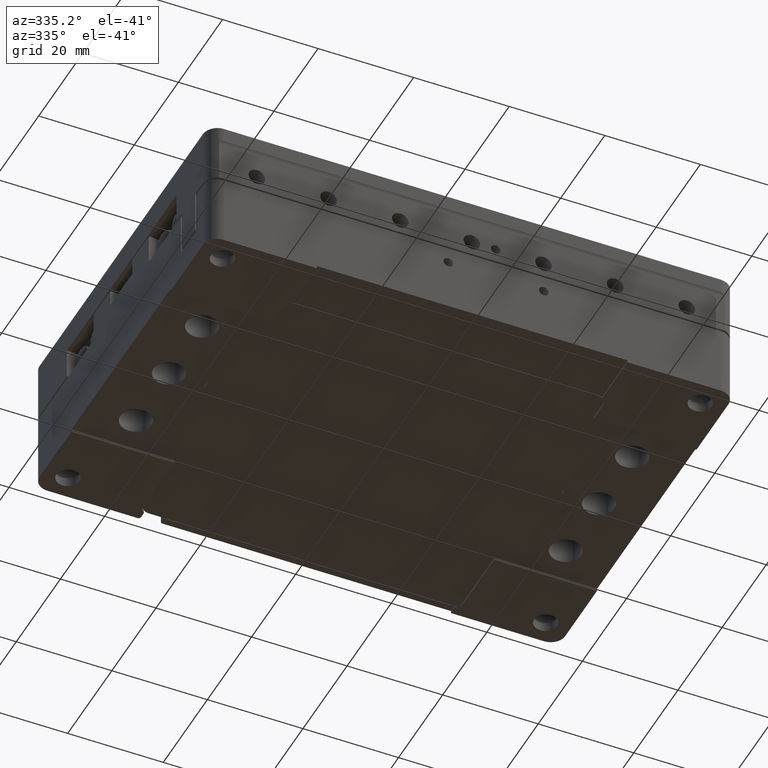
[diagram: clean part render]
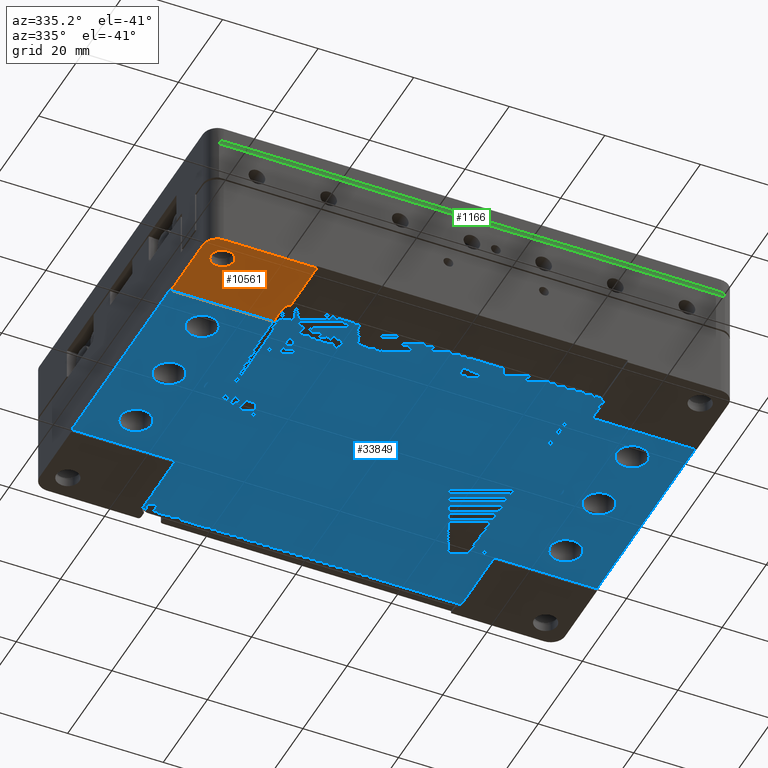
[diagram: same view with three faces highlighted in distinct colors, each labeled with its STEP entity id]
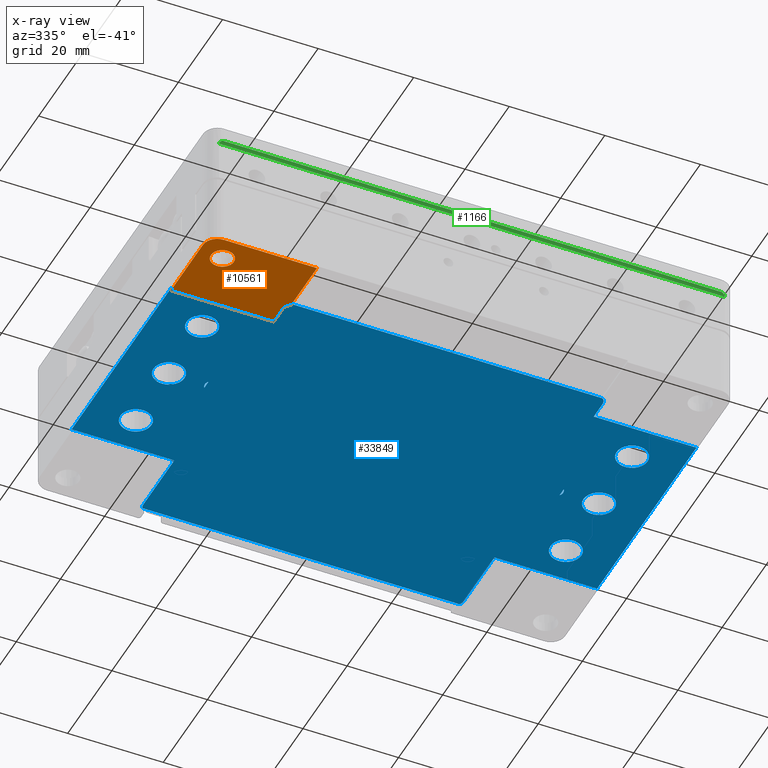
[diagram: x-ray of the same camera — body ghosted, the three highlighted faces saturated]
A machine part, auxiliary view with three faces highlighted in distinct colors.
The next image is the same camera in x-ray (body ghosted, the three faces saturated) — at least one of them is partly hidden behind the body in this view.
Their STEP definitions:

[orange] entity #10561 — the highlighted planar face has unit normal (0, 0, -1).
#1062 = VERTEX_POINT ( 'NONE', #17157 ) ;
#1491 = CARTESIAN_POINT ( 'NONE',  ( -50.00000000000000000, -35.00000000000000000, -15.00000000000000000 ) ) ;
#2390 = ORIENTED_EDGE ( 'NONE', *, *, #11864, .T. ) ;
#3045 = ORIENTED_EDGE ( 'NONE', *, *, #25262, .T. ) ;
#3469 = DIRECTION ( 'NONE',  ( 1.000000000000000000, 0.000000000000000000, 0.000000000000000000 ) ) ;
#4200 = CARTESIAN_POINT ( 'NONE',  ( -55.00000000000000000, -40.00000000000000000, -15.00000000000000000 ) ) ;
#4336 = CARTESIAN_POINT ( 'NONE',  ( -33.50000000000000000, -22.50000000000000000, -15.00000000000000000 ) ) ;
#4690 = EDGE_CURVE ( 'NONE', #29111, #1062, #32689, .T. ) ;
#5015 = VECTOR ( 'NONE', #30026, 1000.000000000000000 ) ;
#5588 = ORIENTED_EDGE ( 'NONE', *, *, #4690, .T. ) ;
#5800 = LINE ( 'NONE', #9050, #22763 ) ;
#6364 = EDGE_CURVE ( 'NONE', #23460, #29111, #19356, .T. ) ;
#6886 = FACE_BOUND ( 'NONE', #27708, .T. ) ;
#7289 = DIRECTION ( 'NONE',  ( 0.000000000000000000, -1.000000000000000000, 0.000000000000000000 ) ) ;
#7312 = ORIENTED_EDGE ( 'NONE', *, *, #30873, .T. ) ;
#7421 = DIRECTION ( 'NONE',  ( 0.000000000000000000, 0.000000000000000000, -1.000000000000000000 ) ) ;
#8280 = CARTESIAN_POINT ( 'NONE',  ( -33.50000000000000000, -26.50000000000000000, -15.00000000000000000 ) ) ;
#8851 = CARTESIAN_POINT ( 'NONE',  ( -47.60000000000000142, -35.00000000000000000, -15.00000000000000000 ) ) ;
#9050 = CARTESIAN_POINT ( 'NONE',  ( -32.50000000000000000, -40.00000000000000000, -15.00000000000000000 ) ) ;
#9436 = CARTESIAN_POINT ( 'NONE',  ( -52.40000000000000568, -35.00000000000000000, -15.00000000000000000 ) ) ;
#9831 = CIRCLE ( 'NONE', #14948, 2.399999999999999467 ) ;
#10561 = ADVANCED_FACE ( 'NONE', ( #26226, #6886 ), #34437, .T. ) ;
#10910 = VERTEX_POINT ( 'NONE', #4336 ) ;
#11432 = EDGE_CURVE ( 'NONE', #10910, #17461, #26263, .T. ) ;
#11500 = ORIENTED_EDGE ( 'NONE', *, *, #11432, .T. ) ;
#11864 = EDGE_CURVE ( 'NONE', #15895, #23460, #15455, .T. ) ;
#12263 = VECTOR ( 'NONE', #28736, 1000.000000000000000 ) ;
#14395 = DIRECTION ( 'NONE',  ( 0.000000000000000000, 0.000000000000000000, 1.000000000000000000 ) ) ;
#14439 = EDGE_CURVE ( 'NONE', #21505, #25199, #28973, .T. ) ;
#14583 = DIRECTION ( 'NONE',  ( -1.000000000000000000, 0.000000000000000000, 0.000000000000000000 ) ) ;
#14909 = EDGE_CURVE ( 'NONE', #20449, #15895, #5800, .T. ) ;
#14948 = AXIS2_PLACEMENT_3D ( 'NONE', #1491, #23336, #3469 ) ;
#15453 = DIRECTION ( 'NONE',  ( 0.000000000000000000, -1.000000000000000000, 0.000000000000000000 ) ) ;
#15455 = LINE ( 'NONE', #17795, #12263 ) ;
#15895 = VERTEX_POINT ( 'NONE', #27947 ) ;
#16311 = CARTESIAN_POINT ( 'NONE',  ( -32.50000000000000000, -28.23205080756899932, -15.00000000000000000 ) ) ;
#17157 = CARTESIAN_POINT ( 'NONE',  ( -55.00000000000000000, -22.50000000000000000, -15.00000000000000000 ) ) ;
#17453 = CARTESIAN_POINT ( 'NONE',  ( -31.50000000000000000, -26.50000000000000000, -15.00000000000000000 ) ) ;
#17461 = VERTEX_POINT ( 'NONE', #8280 ) ;
#17515 = ORIENTED_EDGE ( 'NONE', *, *, #19066, .T. ) ;
#17795 = CARTESIAN_POINT ( 'NONE',  ( -55.00000000000000000, -40.00000000000000000, -15.00000000000000000 ) ) ;
#18442 = CARTESIAN_POINT ( 'NONE',  ( -50.00000000000000000, -35.00000000000000000, -15.00000000000000000 ) ) ;
#18747 = CARTESIAN_POINT ( 'NONE',  ( -55.00000000000000000, 0.000000000000000000, -15.00000000000000000 ) ) ;
#19047 = DIRECTION ( 'NONE',  ( 0.000000000000000000, 0.000000000000000000, -1.000000000000000000 ) ) ;
#19066 = EDGE_CURVE ( 'NONE', #17461, #20449, #19687, .T. ) ;
#19356 = CIRCLE ( 'NONE', #26247, 3.000000000000002665 ) ;
#19687 = CIRCLE ( 'NONE', #25982, 2.000000000000001776 ) ;
#19766 = CARTESIAN_POINT ( 'NONE',  ( -32.50000000000000000, -22.50000000000000000, -15.00000000000000000 ) ) ;
#19786 = CARTESIAN_POINT ( 'NONE',  ( -55.00000000000000000, -37.00000000000000000, -15.00000000000000000 ) ) ;
#19962 = DIRECTION ( 'NONE',  ( 0.000000000000000000, -1.000000000000000000, 0.000000000000000000 ) ) ;
#20449 = VERTEX_POINT ( 'NONE', #16311 ) ;
#20819 = VECTOR ( 'NONE', #30172, 1000.000000000000000 ) ;
#21505 = VERTEX_POINT ( 'NONE', #9436 ) ;
#21569 = CARTESIAN_POINT ( 'NONE',  ( -52.00000000000000000, -37.00000000000000000, -15.00000000000000000 ) ) ;
#21735 = LINE ( 'NONE', #19766, #20819 ) ;
#22476 = AXIS2_PLACEMENT_3D ( 'NONE', #4200, #7421, #15453 ) ;
#22763 = VECTOR ( 'NONE', #19962, 1000.000000000000000 ) ;
#23336 = DIRECTION ( 'NONE',  ( 0.000000000000000000, 0.000000000000000000, 1.000000000000000000 ) ) ;
#23460 = VERTEX_POINT ( 'NONE', #24931 ) ;
#24931 = CARTESIAN_POINT ( 'NONE',  ( -52.00000000000000000, -40.00000000000000000, -15.00000000000000000 ) ) ;
#25199 = VERTEX_POINT ( 'NONE', #8851 ) ;
#25262 = EDGE_CURVE ( 'NONE', #1062, #10910, #21735, .T. ) ;
#25982 = AXIS2_PLACEMENT_3D ( 'NONE', #17453, #14395, #14583 ) ;
#26152 = EDGE_LOOP ( 'NONE', ( #3045, #11500, #17515, #31686, #2390, #29790, #5588 ) ) ;
#26226 = FACE_OUTER_BOUND ( 'NONE', #26152, .T. ) ;
#26247 = AXIS2_PLACEMENT_3D ( 'NONE', #21569, #19047, #29987 ) ;
#26263 = LINE ( 'NONE', #32150, #27111 ) ;
#27111 = VECTOR ( 'NONE', #7289, 1000.000000000000000 ) ;
#27576 = ORIENTED_EDGE ( 'NONE', *, *, #14439, .T. ) ;
#27708 = EDGE_LOOP ( 'NONE', ( #7312, #27576 ) ) ;
#27947 = CARTESIAN_POINT ( 'NONE',  ( -32.50000000000000000, -40.00000000000000000, -15.00000000000000000 ) ) ;
#28736 = DIRECTION ( 'NONE',  ( -1.000000000000000000, 0.000000000000000000, 0.000000000000000000 ) ) ;
#28973 = CIRCLE ( 'NONE', #33527, 2.399999999999999467 ) ;
#29111 = VERTEX_POINT ( 'NONE', #19786 ) ;
#29389 = DIRECTION ( 'NONE',  ( 0.000000000000000000, 0.000000000000000000, 1.000000000000000000 ) ) ;
#29790 = ORIENTED_EDGE ( 'NONE', *, *, #6364, .T. ) ;
#29987 = DIRECTION ( 'NONE',  ( 1.000000000000000000, 0.000000000000000000, 0.000000000000000000 ) ) ;
#30026 = DIRECTION ( 'NONE',  ( 0.000000000000000000, 1.000000000000000000, 0.000000000000000000 ) ) ;
#30172 = DIRECTION ( 'NONE',  ( 1.000000000000000000, 0.000000000000000000, 0.000000000000000000 ) ) ;
#30873 = EDGE_CURVE ( 'NONE', #25199, #21505, #9831, .T. ) ;
#31686 = ORIENTED_EDGE ( 'NONE', *, *, #14909, .T. ) ;
#32150 = CARTESIAN_POINT ( 'NONE',  ( -33.50000000000000000, -26.50000000000000000, -15.00000000000000000 ) ) ;
#32689 = LINE ( 'NONE', #18747, #5015 ) ;
#33527 = AXIS2_PLACEMENT_3D ( 'NONE', #18442, #29389, #35096 ) ;
#34437 = PLANE ( 'NONE',  #22476 ) ;
#35096 = DIRECTION ( 'NONE',  ( 1.000000000000000000, 0.000000000000000000, 0.000000000000000000 ) ) ;

[blue] entity #33849 — the highlighted planar face has unit normal (0, 0, -1).
#21 = CARTESIAN_POINT ( 'NONE',  ( -48.25000000000000000, 0.000000000000000000, -14.50000000000000000 ) ) ;
#79 = EDGE_CURVE ( 'NONE', #13425, #29669, #34217, .T. ) ;
#298 = VERTEX_POINT ( 'NONE', #17809 ) ;
#411 = ORIENTED_EDGE ( 'NONE', *, *, #17182, .T. ) ;
#634 = CARTESIAN_POINT ( 'NONE',  ( -55.00000000000000000, 22.50000000000000000, -14.50000000000000000 ) ) ;
#898 = VERTEX_POINT ( 'NONE', #32576 ) ;
#983 = VECTOR ( 'NONE', #24867, 1000.000000000000000 ) ;
#1032 = ORIENTED_EDGE ( 'NONE', *, *, #12529, .T. ) ;
#1178 = EDGE_LOOP ( 'NONE', ( #1032, #31660 ) ) ;
#1293 = DIRECTION ( 'NONE',  ( 0.000000000000000000, 0.000000000000000000, -1.000000000000000000 ) ) ;
#1498 = AXIS2_PLACEMENT_3D ( 'NONE', #18668, #5060, #34791 ) ;
#1722 = CARTESIAN_POINT ( 'NONE',  ( 0.000000000000000000, 22.50000000000000000, -14.50000000000000000 ) ) ;
#1725 = CARTESIAN_POINT ( 'NONE',  ( -33.50000000000000000, 36.50000000000000000, -14.50000000000000000 ) ) ;
#1746 = EDGE_CURVE ( 'NONE', #7914, #15602, #18711, .T. ) ;
#2008 = CARTESIAN_POINT ( 'NONE',  ( -45.00000000000000000, -15.00000000000000000, -14.50000000000000000 ) ) ;
#2014 = CIRCLE ( 'NONE', #6587, 3.250000000000002665 ) ;
#2094 = EDGE_CURVE ( 'NONE', #29669, #16212, #6169, .T. ) ;
#2159 = DIRECTION ( 'NONE',  ( 0.000000000000000000, 0.000000000000000000, 1.000000000000000000 ) ) ;
#2228 = EDGE_CURVE ( 'NONE', #28335, #22862, #7303, .T. ) ;
#2233 = ORIENTED_EDGE ( 'NONE', *, *, #4182, .T. ) ;
#2349 = ORIENTED_EDGE ( 'NONE', *, *, #29619, .T. ) ;
#2356 = VERTEX_POINT ( 'NONE', #21 ) ;
#2509 = CARTESIAN_POINT ( 'NONE',  ( -33.50000000000000000, 22.50000000000000000, -14.50000000000000000 ) ) ;
#2545 = CARTESIAN_POINT ( 'NONE',  ( -37.16499999999999915, 0.000000000000000000, -14.50000000000000000 ) ) ;
#2602 = CARTESIAN_POINT ( 'NONE',  ( 0.000000000000000000, -28.00000000000000000, -14.50000000000000000 ) ) ;
#2633 = VECTOR ( 'NONE', #15832, 1000.000000000000000 ) ;
#2706 = EDGE_CURVE ( 'NONE', #20560, #25093, #19325, .T. ) ;
#2785 = VERTEX_POINT ( 'NONE', #2509 ) ;
#2848 = ORIENTED_EDGE ( 'NONE', *, *, #2228, .T. ) ;
#3104 = ORIENTED_EDGE ( 'NONE', *, *, #17647, .T. ) ;
#3185 = VERTEX_POINT ( 'NONE', #22100 ) ;
#3234 = VECTOR ( 'NONE', #32581, 1000.000000000000000 ) ;
#3269 = CARTESIAN_POINT ( 'NONE',  ( -33.50000000000000000, -26.50000000000000000, -14.50000000000000000 ) ) ;
#3480 = DIRECTION ( 'NONE',  ( 1.000000000000000000, 0.000000000000000000, 0.000000000000000000 ) ) ;
#3494 = LINE ( 'NONE', #14384, #33011 ) ;
#3819 = CARTESIAN_POINT ( 'NONE',  ( 31.50000000000000000, -26.50000000000000000, -14.50000000000000000 ) ) ;
#3894 = CARTESIAN_POINT ( 'NONE',  ( -55.00000000000000000, 0.000000000000000000, -14.50000000000000000 ) ) ;
#4182 = EDGE_CURVE ( 'NONE', #28480, #25108, #21249, .T. ) ;
#4230 = DIRECTION ( 'NONE',  ( 0.000000000000000000, 0.000000000000000000, 1.000000000000000000 ) ) ;
#4454 = CIRCLE ( 'NONE', #6749, 3.250000000000002665 ) ;
#4521 = ORIENTED_EDGE ( 'NONE', *, *, #15443, .T. ) ;
#4636 = CARTESIAN_POINT ( 'NONE',  ( -37.16499999999999915, 0.9448677156089099194, -14.50000000000000000 ) ) ;
#4662 = DIRECTION ( 'NONE',  ( -1.000000000000000000, 0.000000000000000000, 0.000000000000000000 ) ) ;
#4868 = VERTEX_POINT ( 'NONE', #634 ) ;
#4905 = AXIS2_PLACEMENT_3D ( 'NONE', #25720, #4230, #12613 ) ;
#4921 = LINE ( 'NONE', #7965, #2633 ) ;
#4983 = EDGE_CURVE ( 'NONE', #34850, #2356, #35348, .T. ) ;
#5060 = DIRECTION ( 'NONE',  ( 0.000000000000000000, 0.000000000000000000, 1.000000000000000000 ) ) ;
#5384 = FACE_BOUND ( 'NONE', #11626, .T. ) ;
#5485 = AXIS2_PLACEMENT_3D ( 'NONE', #33898, #12224, #23166 ) ;
#5860 = VERTEX_POINT ( 'NONE', #6949 ) ;
#6074 = ORIENTED_EDGE ( 'NONE', *, *, #26664, .T. ) ;
#6161 = VECTOR ( 'NONE', #17173, 1000.000000000000000 ) ;
#6169 = LINE ( 'NONE', #17076, #7273 ) ;
#6185 = LINE ( 'NONE', #17091, #17327 ) ;
#6324 = CARTESIAN_POINT ( 'NONE',  ( 33.50000000000000000, -22.50000000000000000, -14.50000000000000000 ) ) ;
#6351 = DIRECTION ( 'NONE',  ( 1.000000000000000000, 0.000000000000000000, 0.000000000000000000 ) ) ;
#6439 = VERTEX_POINT ( 'NONE', #18871 ) ;
#6519 = CARTESIAN_POINT ( 'NONE',  ( 45.00000000000000000, 15.00000000000000000, -14.50000000000000000 ) ) ;
#6523 = CARTESIAN_POINT ( 'NONE',  ( -48.25000000000000000, 15.00000000000000000, -14.50000000000000000 ) ) ;
#6587 = AXIS2_PLACEMENT_3D ( 'NONE', #10237, #12704, #4662 ) ;
#6749 = AXIS2_PLACEMENT_3D ( 'NONE', #10928, #31944, #7410 ) ;
#6849 = EDGE_CURVE ( 'NONE', #16154, #20069, #4454, .T. ) ;
#6901 = ORIENTED_EDGE ( 'NONE', *, *, #1746, .T. ) ;
#6949 = CARTESIAN_POINT ( 'NONE',  ( -48.25000000000000000, -15.00000000000000000, -14.50000000000000000 ) ) ;
#7055 = CARTESIAN_POINT ( 'NONE',  ( 33.50000000000000000, 22.50000000000000000, -14.50000000000000000 ) ) ;
#7150 = CARTESIAN_POINT ( 'NONE',  ( 32.82287565553114916, -28.00000000000000000, -14.50000000000000000 ) ) ;
#7165 = ORIENTED_EDGE ( 'NONE', *, *, #27681, .T. ) ;
#7273 = VECTOR ( 'NONE', #3480, 1000.000000000000000 ) ;
#7303 = CIRCLE ( 'NONE', #1498, 3.250000000000002665 ) ;
#7393 = FACE_BOUND ( 'NONE', #22392, .T. ) ;
#7410 = DIRECTION ( 'NONE',  ( -1.000000000000000000, 0.000000000000000000, 0.000000000000000000 ) ) ;
#7477 = DIRECTION ( 'NONE',  ( 0.000000000000000000, 0.000000000000000000, -1.000000000000000000 ) ) ;
#7514 = ORIENTED_EDGE ( 'NONE', *, *, #19033, .T. ) ;
#7516 = CARTESIAN_POINT ( 'NONE',  ( -36.00000000000000000, 0.000000000000000000, -14.50000000000000000 ) ) ;
#7553 = DIRECTION ( 'NONE',  ( 0.000000000000000000, -1.000000000000000000, 0.000000000000000000 ) ) ;
#7593 = CIRCLE ( 'NONE', #23030, 3.250000000000002665 ) ;
#7732 = CARTESIAN_POINT ( 'NONE',  ( 0.000000000000000000, 0.000000000000000000, -14.50000000000000000 ) ) ;
#7775 = VERTEX_POINT ( 'NONE', #14024 ) ;
#7804 = DIRECTION ( 'NONE',  ( -1.000000000000000000, 0.000000000000000000, 0.000000000000000000 ) ) ;
#7868 = DIRECTION ( 'NONE',  ( 0.000000000000000000, 0.000000000000000000, 1.000000000000000000 ) ) ;
#7914 = VERTEX_POINT ( 'NONE', #7055 ) ;
#7965 = CARTESIAN_POINT ( 'NONE',  ( 33.50000000000000000, 0.000000000000000000, -14.50000000000000000 ) ) ;
#8256 = VERTEX_POINT ( 'NONE', #11261 ) ;
#8261 = CIRCLE ( 'NONE', #27726, 3.250000000000002665 ) ;
#8518 = VERTEX_POINT ( 'NONE', #31486 ) ;
#8577 = EDGE_LOOP ( 'NONE', ( #6074, #9883 ) ) ;
#8626 = ORIENTED_EDGE ( 'NONE', *, *, #2094, .T. ) ;
#8884 = CIRCLE ( 'NONE', #27181, 3.250000000000002665 ) ;
#8959 = LINE ( 'NONE', #30815, #6161 ) ;
#8973 = CARTESIAN_POINT ( 'NONE',  ( 37.16499999999999915, 0.000000000000000000, -14.50000000000000000 ) ) ;
#9249 = LINE ( 'NONE', #3894, #25872 ) ;
#9495 = ORIENTED_EDGE ( 'NONE', *, *, #25463, .T. ) ;
#9790 = CARTESIAN_POINT ( 'NONE',  ( 48.25000000000000000, 3.980102097228895273E-16, -14.50000000000000000 ) ) ;
#9883 = ORIENTED_EDGE ( 'NONE', *, *, #6849, .T. ) ;
#10055 = EDGE_CURVE ( 'NONE', #6439, #4868, #9249, .T. ) ;
#10112 = VECTOR ( 'NONE', #31983, 1000.000000000000000 ) ;
#10237 = CARTESIAN_POINT ( 'NONE',  ( 45.00000000000000000, 0.000000000000000000, -14.50000000000000000 ) ) ;
#10251 = EDGE_LOOP ( 'NONE', ( #2233, #19810, #30357 ) ) ;
#10473 = CARTESIAN_POINT ( 'NONE',  ( 45.00000000000000000, -15.00000000000000000, -14.50000000000000000 ) ) ;
#10507 = DIRECTION ( 'NONE',  ( -1.000000000000000000, 0.000000000000000000, 0.000000000000000000 ) ) ;
#10510 = VERTEX_POINT ( 'NONE', #20122 ) ;
#10528 = EDGE_CURVE ( 'NONE', #25093, #6439, #6185, .T. ) ;
#10575 = CARTESIAN_POINT ( 'NONE',  ( -37.16499999999999915, -0.9448677156089099194, -14.50000000000000000 ) ) ;
#10588 = EDGE_LOOP ( 'NONE', ( #411, #15382, #25548, #8626, #2349, #11645, #6901, #32014, #20131, #21968, #3104, #33236, #7165, #32182, #18816, #23655 ) ) ;
#10761 = DIRECTION ( 'NONE',  ( 0.000000000000000000, 0.000000000000000000, -1.000000000000000000 ) ) ;
#10865 = AXIS2_PLACEMENT_3D ( 'NONE', #23448, #15371, #17880 ) ;
#10877 = DIRECTION ( 'NONE',  ( -1.000000000000000000, 0.000000000000000000, 0.000000000000000000 ) ) ;
#10928 = CARTESIAN_POINT ( 'NONE',  ( -45.00000000000000000, 15.00000000000000000, -14.50000000000000000 ) ) ;
#11126 = CARTESIAN_POINT ( 'NONE',  ( 36.00000000000000000, 0.000000000000000000, -14.50000000000000000 ) ) ;
#11193 = VECTOR ( 'NONE', #25655, 1000.000000000000000 ) ;
#11260 = DIRECTION ( 'NONE',  ( 0.000000000000000000, 0.000000000000000000, 1.000000000000000000 ) ) ;
#11261 = CARTESIAN_POINT ( 'NONE',  ( -41.75000000000000000, -15.00000000000000000, -14.50000000000000000 ) ) ;
#11626 = EDGE_LOOP ( 'NONE', ( #4521, #31637 ) ) ;
#11645 = ORIENTED_EDGE ( 'NONE', *, *, #33276, .T. ) ;
#11810 = CIRCLE ( 'NONE', #5485, 3.250000000000002665 ) ;
#11912 = DIRECTION ( 'NONE',  ( -1.000000000000000000, 0.000000000000000000, 0.000000000000000000 ) ) ;
#12197 = CARTESIAN_POINT ( 'NONE',  ( 0.000000000000000000, -22.50000000000000000, -14.50000000000000000 ) ) ;
#12224 = DIRECTION ( 'NONE',  ( 0.000000000000000000, 0.000000000000000000, 1.000000000000000000 ) ) ;
#12254 = CIRCLE ( 'NONE', #34551, 3.250000000000002665 ) ;
#12281 = EDGE_CURVE ( 'NONE', #30753, #7775, #4921, .T. ) ;
#12529 = EDGE_CURVE ( 'NONE', #2356, #34850, #11810, .T. ) ;
#12613 = DIRECTION ( 'NONE',  ( -1.000000000000000000, 0.000000000000000000, 0.000000000000000000 ) ) ;
#12704 = DIRECTION ( 'NONE',  ( 0.000000000000000000, 0.000000000000000000, 1.000000000000000000 ) ) ;
#12787 = DIRECTION ( 'NONE',  ( -1.000000000000000000, 0.000000000000000000, 0.000000000000000000 ) ) ;
#12862 = EDGE_CURVE ( 'NONE', #15588, #28480, #17159, .T. ) ;
#12906 = DIRECTION ( 'NONE',  ( 0.000000000000000000, 0.000000000000000000, 1.000000000000000000 ) ) ;
#13146 = CARTESIAN_POINT ( 'NONE',  ( -37.50000000000000000, 0.000000000000000000, -14.50000000000000000 ) ) ;
#13425 = VERTEX_POINT ( 'NONE', #1725 ) ;
#13428 = EDGE_CURVE ( 'NONE', #8256, #5860, #32350, .T. ) ;
#13605 = EDGE_CURVE ( 'NONE', #8518, #28264, #30061, .T. ) ;
#13624 = LINE ( 'NONE', #32618, #15659 ) ;
#14024 = CARTESIAN_POINT ( 'NONE',  ( 33.50000000000000000, -26.50000000000000000, -14.50000000000000000 ) ) ;
#14196 = ORIENTED_EDGE ( 'NONE', *, *, #13605, .T. ) ;
#14352 = VERTEX_POINT ( 'NONE', #15567 ) ;
#14384 = CARTESIAN_POINT ( 'NONE',  ( 0.000000000000000000, 22.50000000000000000, -14.50000000000000000 ) ) ;
#14479 = CARTESIAN_POINT ( 'NONE',  ( -32.82287565553114916, -28.00000000000000000, -14.50000000000000000 ) ) ;
#14714 = LINE ( 'NONE', #12197, #11193 ) ;
#14718 = DIRECTION ( 'NONE',  ( -1.000000000000000000, 0.000000000000000000, 0.000000000000000000 ) ) ;
#14772 = EDGE_CURVE ( 'NONE', #22372, #26268, #16006, .T. ) ;
#15371 = DIRECTION ( 'NONE',  ( 0.000000000000000000, 0.000000000000000000, -1.000000000000000000 ) ) ;
#15382 = ORIENTED_EDGE ( 'NONE', *, *, #15961, .T. ) ;
#15443 = EDGE_CURVE ( 'NONE', #298, #898, #31859, .T. ) ;
#15567 = CARTESIAN_POINT ( 'NONE',  ( 41.75000000000000000, 15.00000000000000000, -14.50000000000000000 ) ) ;
#15588 = VERTEX_POINT ( 'NONE', #10575 ) ;
#15589 = FACE_BOUND ( 'NONE', #1178, .T. ) ;
#15602 = VERTEX_POINT ( 'NONE', #15935 ) ;
#15659 = VECTOR ( 'NONE', #29772, 1000.000000000000000 ) ;
#15832 = DIRECTION ( 'NONE',  ( 0.000000000000000000, -1.000000000000000000, 0.000000000000000000 ) ) ;
#15909 = CARTESIAN_POINT ( 'NONE',  ( 45.00000000000000000, -15.00000000000000000, -14.50000000000000000 ) ) ;
#15935 = CARTESIAN_POINT ( 'NONE',  ( 55.00000000000000000, 22.50000000000000000, -14.50000000000000000 ) ) ;
#15946 = FACE_BOUND ( 'NONE', #25973, .T. ) ;
#15961 = EDGE_CURVE ( 'NONE', #2785, #13425, #8959, .T. ) ;
#16001 = CARTESIAN_POINT ( 'NONE',  ( -33.50000000000000000, -22.50000000000000000, -14.50000000000000000 ) ) ;
#16006 = LINE ( 'NONE', #2602, #34122 ) ;
#16154 = VERTEX_POINT ( 'NONE', #24226 ) ;
#16195 = ORIENTED_EDGE ( 'NONE', *, *, #23836, .T. ) ;
#16212 = VERTEX_POINT ( 'NONE', #32288 ) ;
#16292 = FACE_BOUND ( 'NONE', #30201, .T. ) ;
#17076 = CARTESIAN_POINT ( 'NONE',  ( 0.000000000000000000, 37.54999999999999716, -14.50000000000000000 ) ) ;
#17091 = CARTESIAN_POINT ( 'NONE',  ( 0.000000000000000000, -22.50000000000000000, -14.50000000000000000 ) ) ;
#17159 = LINE ( 'NONE', #2545, #983 ) ;
#17173 = DIRECTION ( 'NONE',  ( 0.000000000000000000, 1.000000000000000000, 0.000000000000000000 ) ) ;
#17182 = EDGE_CURVE ( 'NONE', #4868, #2785, #3494, .T. ) ;
#17188 = DIRECTION ( 'NONE',  ( 0.000000000000000000, -1.000000000000000000, 0.000000000000000000 ) ) ;
#17327 = VECTOR ( 'NONE', #22999, 1000.000000000000000 ) ;
#17434 = CARTESIAN_POINT ( 'NONE',  ( 48.25000000000000000, 15.00000000000000000, -14.50000000000000000 ) ) ;
#17474 = AXIS2_PLACEMENT_3D ( 'NONE', #10473, #21389, #21570 ) ;
#17647 = EDGE_CURVE ( 'NONE', #7775, #22372, #31641, .T. ) ;
#17791 = DIRECTION ( 'NONE',  ( 0.000000000000000000, 0.000000000000000000, 1.000000000000000000 ) ) ;
#17809 = CARTESIAN_POINT ( 'NONE',  ( 37.16499999999999915, -0.9448677156089099194, -14.50000000000000000 ) ) ;
#17880 = DIRECTION ( 'NONE',  ( -1.000000000000000000, 0.000000000000000000, 0.000000000000000000 ) ) ;
#18180 = CARTESIAN_POINT ( 'NONE',  ( -45.00000000000000000, 0.000000000000000000, -14.50000000000000000 ) ) ;
#18265 = ORIENTED_EDGE ( 'NONE', *, *, #19701, .T. ) ;
#18464 = FACE_OUTER_BOUND ( 'NONE', #10588, .T. ) ;
#18647 = FACE_BOUND ( 'NONE', #32155, .T. ) ;
#18668 = CARTESIAN_POINT ( 'NONE',  ( 45.00000000000000000, 0.000000000000000000, -14.50000000000000000 ) ) ;
#18711 = LINE ( 'NONE', #1722, #10112 ) ;
#18769 = AXIS2_PLACEMENT_3D ( 'NONE', #21083, #7477, #10507 ) ;
#18816 = ORIENTED_EDGE ( 'NONE', *, *, #10528, .T. ) ;
#18871 = CARTESIAN_POINT ( 'NONE',  ( -55.00000000000000000, -22.50000000000000000, -14.50000000000000000 ) ) ;
#18935 = DIRECTION ( 'NONE',  ( 0.000000000000000000, 0.000000000000000000, -1.000000000000000000 ) ) ;
#19033 = EDGE_CURVE ( 'NONE', #5860, #8256, #8261, .T. ) ;
#19044 = CIRCLE ( 'NONE', #19613, 1.500000000000001332 ) ;
#19325 = LINE ( 'NONE', #35093, #3234 ) ;
#19348 = LINE ( 'NONE', #8973, #24773 ) ;
#19613 = AXIS2_PLACEMENT_3D ( 'NONE', #22733, #11260, #22193 ) ;
#19701 = EDGE_CURVE ( 'NONE', #28264, #8518, #8884, .T. ) ;
#19771 = CIRCLE ( 'NONE', #27189, 3.250000000000002665 ) ;
#19810 = ORIENTED_EDGE ( 'NONE', *, *, #24516, .T. ) ;
#20069 = VERTEX_POINT ( 'NONE', #6523 ) ;
#20122 = CARTESIAN_POINT ( 'NONE',  ( 55.00000000000000000, -22.50000000000000000, -14.50000000000000000 ) ) ;
#20131 = ORIENTED_EDGE ( 'NONE', *, *, #27132, .T. ) ;
#20425 = EDGE_CURVE ( 'NONE', #15602, #10510, #13624, .T. ) ;
#20560 = VERTEX_POINT ( 'NONE', #3269 ) ;
#20623 = EDGE_CURVE ( 'NONE', #22862, #28335, #2014, .T. ) ;
#20845 = LINE ( 'NONE', #31787, #33306 ) ;
#20857 = DIRECTION ( 'NONE',  ( 0.000000000000000000, 0.000000000000000000, 1.000000000000000000 ) ) ;
#21083 = CARTESIAN_POINT ( 'NONE',  ( -31.50000000000000000, 36.50000000000000000, -14.50000000000000000 ) ) ;
#21249 = CIRCLE ( 'NONE', #26947, 1.500000000000001332 ) ;
#21320 = AXIS2_PLACEMENT_3D ( 'NONE', #3819, #1293, #14718 ) ;
#21389 = DIRECTION ( 'NONE',  ( 0.000000000000000000, 0.000000000000000000, 1.000000000000000000 ) ) ;
#21570 = DIRECTION ( 'NONE',  ( -1.000000000000000000, 0.000000000000000000, 0.000000000000000000 ) ) ;
#21640 = DIRECTION ( 'NONE',  ( -1.000000000000000000, 0.000000000000000000, 0.000000000000000000 ) ) ;
#21968 = ORIENTED_EDGE ( 'NONE', *, *, #12281, .T. ) ;
#22055 = DIRECTION ( 'NONE',  ( 0.000000000000000000, 0.000000000000000000, 1.000000000000000000 ) ) ;
#22100 = CARTESIAN_POINT ( 'NONE',  ( 33.50000000000000000, 36.50000000000000000, -14.50000000000000000 ) ) ;
#22193 = DIRECTION ( 'NONE',  ( -1.000000000000000000, 0.000000000000000000, 0.000000000000000000 ) ) ;
#22372 = VERTEX_POINT ( 'NONE', #7150 ) ;
#22392 = EDGE_LOOP ( 'NONE', ( #9495, #16195 ) ) ;
#22650 = CARTESIAN_POINT ( 'NONE',  ( -45.00000000000000000, 15.00000000000000000, -14.50000000000000000 ) ) ;
#22691 = DIRECTION ( 'NONE',  ( 0.000000000000000000, 1.000000000000000000, 0.000000000000000000 ) ) ;
#22733 = CARTESIAN_POINT ( 'NONE',  ( -36.00000000000000000, 0.000000000000000000, -14.50000000000000000 ) ) ;
#22862 = VERTEX_POINT ( 'NONE', #9790 ) ;
#22999 = DIRECTION ( 'NONE',  ( -1.000000000000000000, 0.000000000000000000, 0.000000000000000000 ) ) ;
#23030 = AXIS2_PLACEMENT_3D ( 'NONE', #24501, #35418, #10877 ) ;
#23166 = DIRECTION ( 'NONE',  ( -1.000000000000000000, 0.000000000000000000, 0.000000000000000000 ) ) ;
#23174 = DIRECTION ( 'NONE',  ( -1.000000000000000000, 0.000000000000000000, 0.000000000000000000 ) ) ;
#23192 = DIRECTION ( 'NONE',  ( 0.000000000000000000, -1.000000000000000000, 0.000000000000000000 ) ) ;
#23278 = CARTESIAN_POINT ( 'NONE',  ( 41.75000000000000000, -15.00000000000000000, -14.50000000000000000 ) ) ;
#23448 = CARTESIAN_POINT ( 'NONE',  ( -31.50000000000000000, -26.50000000000000000, -14.50000000000000000 ) ) ;
#23655 = ORIENTED_EDGE ( 'NONE', *, *, #10055, .T. ) ;
#23836 = EDGE_CURVE ( 'NONE', #25482, #14352, #7593, .T. ) ;
#24150 = DIRECTION ( 'NONE',  ( -1.000000000000000000, 0.000000000000000000, 0.000000000000000000 ) ) ;
#24226 = CARTESIAN_POINT ( 'NONE',  ( -41.75000000000000000, 15.00000000000000000, -14.50000000000000000 ) ) ;
#24501 = CARTESIAN_POINT ( 'NONE',  ( 45.00000000000000000, 15.00000000000000000, -14.50000000000000000 ) ) ;
#24516 = EDGE_CURVE ( 'NONE', #25108, #15588, #19044, .T. ) ;
#24736 = ORIENTED_EDGE ( 'NONE', *, *, #13428, .T. ) ;
#24773 = VECTOR ( 'NONE', #17188, 1000.000000000000000 ) ;
#24867 = DIRECTION ( 'NONE',  ( 0.000000000000000000, 1.000000000000000000, 0.000000000000000000 ) ) ;
#25093 = VERTEX_POINT ( 'NONE', #16001 ) ;
#25108 = VERTEX_POINT ( 'NONE', #13146 ) ;
#25463 = EDGE_CURVE ( 'NONE', #14352, #25482, #12254, .T. ) ;
#25482 = VERTEX_POINT ( 'NONE', #17434 ) ;
#25548 = ORIENTED_EDGE ( 'NONE', *, *, #79, .T. ) ;
#25655 = DIRECTION ( 'NONE',  ( -1.000000000000000000, 0.000000000000000000, 0.000000000000000000 ) ) ;
#25720 = CARTESIAN_POINT ( 'NONE',  ( -45.00000000000000000, -15.00000000000000000, -14.50000000000000000 ) ) ;
#25872 = VECTOR ( 'NONE', #22691, 1000.000000000000000 ) ;
#25973 = EDGE_LOOP ( 'NONE', ( #18265, #14196 ) ) ;
#26215 = AXIS2_PLACEMENT_3D ( 'NONE', #18180, #20857, #12787 ) ;
#26268 = VERTEX_POINT ( 'NONE', #14479 ) ;
#26664 = EDGE_CURVE ( 'NONE', #20069, #16154, #19771, .T. ) ;
#26666 = CARTESIAN_POINT ( 'NONE',  ( 31.50000000000000000, 36.50000000000000000, -14.50000000000000000 ) ) ;
#26711 = PLANE ( 'NONE',  #29350 ) ;
#26947 = AXIS2_PLACEMENT_3D ( 'NONE', #7516, #2159, #31516 ) ;
#26965 = AXIS2_PLACEMENT_3D ( 'NONE', #26666, #18935, #21640 ) ;
#27132 = EDGE_CURVE ( 'NONE', #10510, #30753, #14714, .T. ) ;
#27181 = AXIS2_PLACEMENT_3D ( 'NONE', #15909, #7868, #24150 ) ;
#27189 = AXIS2_PLACEMENT_3D ( 'NONE', #22650, #17791, #33569 ) ;
#27284 = CARTESIAN_POINT ( 'NONE',  ( -41.75000000000000000, 3.980102097228895273E-16, -14.50000000000000000 ) ) ;
#27681 = EDGE_CURVE ( 'NONE', #26268, #20560, #29755, .T. ) ;
#27726 = AXIS2_PLACEMENT_3D ( 'NONE', #2008, #12906, #11912 ) ;
#28264 = VERTEX_POINT ( 'NONE', #23278 ) ;
#28302 = CARTESIAN_POINT ( 'NONE',  ( 41.75000000000000000, 0.000000000000000000, -14.50000000000000000 ) ) ;
#28335 = VERTEX_POINT ( 'NONE', #28302 ) ;
#28480 = VERTEX_POINT ( 'NONE', #4636 ) ;
#29350 = AXIS2_PLACEMENT_3D ( 'NONE', #7732, #10761, #7553 ) ;
#29412 = FACE_BOUND ( 'NONE', #8577, .T. ) ;
#29619 = EDGE_CURVE ( 'NONE', #16212, #3185, #34972, .T. ) ;
#29669 = VERTEX_POINT ( 'NONE', #32212 ) ;
#29755 = CIRCLE ( 'NONE', #10865, 2.000000000000001776 ) ;
#29772 = DIRECTION ( 'NONE',  ( 0.000000000000000000, -1.000000000000000000, 0.000000000000000000 ) ) ;
#30061 = CIRCLE ( 'NONE', #17474, 3.250000000000002665 ) ;
#30201 = EDGE_LOOP ( 'NONE', ( #2848, #34842 ) ) ;
#30357 = ORIENTED_EDGE ( 'NONE', *, *, #12862, .T. ) ;
#30701 = AXIS2_PLACEMENT_3D ( 'NONE', #11126, #22055, #32986 ) ;
#30753 = VERTEX_POINT ( 'NONE', #6324 ) ;
#30815 = CARTESIAN_POINT ( 'NONE',  ( -33.50000000000000000, 0.000000000000000000, -14.50000000000000000 ) ) ;
#31234 = DIRECTION ( 'NONE',  ( 0.000000000000000000, 0.000000000000000000, 1.000000000000000000 ) ) ;
#31486 = CARTESIAN_POINT ( 'NONE',  ( 48.25000000000000000, -15.00000000000000000, -14.50000000000000000 ) ) ;
#31516 = DIRECTION ( 'NONE',  ( -1.000000000000000000, 1.776356839400248571E-14, 0.000000000000000000 ) ) ;
#31637 = ORIENTED_EDGE ( 'NONE', *, *, #33979, .T. ) ;
#31641 = CIRCLE ( 'NONE', #21320, 2.000000000000001776 ) ;
#31660 = ORIENTED_EDGE ( 'NONE', *, *, #4983, .T. ) ;
#31787 = CARTESIAN_POINT ( 'NONE',  ( 33.50000000000000000, 0.000000000000000000, -14.50000000000000000 ) ) ;
#31859 = CIRCLE ( 'NONE', #30701, 1.500000000000001332 ) ;
#31944 = DIRECTION ( 'NONE',  ( 0.000000000000000000, 0.000000000000000000, 1.000000000000000000 ) ) ;
#31983 = DIRECTION ( 'NONE',  ( 1.000000000000000000, 0.000000000000000000, 0.000000000000000000 ) ) ;
#32014 = ORIENTED_EDGE ( 'NONE', *, *, #20425, .T. ) ;
#32155 = EDGE_LOOP ( 'NONE', ( #7514, #24736 ) ) ;
#32182 = ORIENTED_EDGE ( 'NONE', *, *, #2706, .T. ) ;
#32212 = CARTESIAN_POINT ( 'NONE',  ( -33.20220445305244539, 37.54999999999999716, -14.50000000000000000 ) ) ;
#32288 = CARTESIAN_POINT ( 'NONE',  ( 33.20220445305244539, 37.54999999999999716, -14.50000000000000000 ) ) ;
#32350 = CIRCLE ( 'NONE', #4905, 3.250000000000002665 ) ;
#32434 = FACE_BOUND ( 'NONE', #10251, .T. ) ;
#32576 = CARTESIAN_POINT ( 'NONE',  ( 37.16499999999999915, 0.9448677156089099194, -14.50000000000000000 ) ) ;
#32581 = DIRECTION ( 'NONE',  ( 0.000000000000000000, 1.000000000000000000, 0.000000000000000000 ) ) ;
#32618 = CARTESIAN_POINT ( 'NONE',  ( 55.00000000000000000, 0.000000000000000000, -14.50000000000000000 ) ) ;
#32986 = DIRECTION ( 'NONE',  ( -1.000000000000000000, 7.105427357600993181E-15, 0.000000000000000000 ) ) ;
#33011 = VECTOR ( 'NONE', #6351, 1000.000000000000000 ) ;
#33236 = ORIENTED_EDGE ( 'NONE', *, *, #14772, .T. ) ;
#33276 = EDGE_CURVE ( 'NONE', #3185, #7914, #20845, .T. ) ;
#33306 = VECTOR ( 'NONE', #23192, 1000.000000000000000 ) ;
#33569 = DIRECTION ( 'NONE',  ( -1.000000000000000000, 0.000000000000000000, 0.000000000000000000 ) ) ;
#33849 = ADVANCED_FACE ( 'NONE', ( #18464, #5384, #32434, #7393, #16292, #15946, #18647, #15589, #29412 ), #26711, .T. ) ;
#33898 = CARTESIAN_POINT ( 'NONE',  ( -45.00000000000000000, 0.000000000000000000, -14.50000000000000000 ) ) ;
#33979 = EDGE_CURVE ( 'NONE', #898, #298, #19348, .T. ) ;
#34122 = VECTOR ( 'NONE', #7804, 1000.000000000000000 ) ;
#34217 = CIRCLE ( 'NONE', #18769, 2.000000000000001776 ) ;
#34551 = AXIS2_PLACEMENT_3D ( 'NONE', #6519, #31234, #23174 ) ;
#34791 = DIRECTION ( 'NONE',  ( -1.000000000000000000, 0.000000000000000000, 0.000000000000000000 ) ) ;
#34842 = ORIENTED_EDGE ( 'NONE', *, *, #20623, .T. ) ;
#34850 = VERTEX_POINT ( 'NONE', #27284 ) ;
#34972 = CIRCLE ( 'NONE', #26965, 2.000000000000001776 ) ;
#35093 = CARTESIAN_POINT ( 'NONE',  ( -33.50000000000000000, 0.000000000000000000, -14.50000000000000000 ) ) ;
#35348 = CIRCLE ( 'NONE', #26215, 3.250000000000002665 ) ;
#35418 = DIRECTION ( 'NONE',  ( 0.000000000000000000, 0.000000000000000000, 1.000000000000000000 ) ) ;

[green] entity #1166 — the highlighted cylindrical surface (edge-blend (fillet) strip) has radius 2.5 mm, axis along (1, 0, 0).
#90 = EDGE_CURVE ( 'NONE', #24599, #17752, #30447, .T. ) ;
#130 = ORIENTED_EDGE ( 'NONE', *, *, #90, .F. ) ;
#282 = CARTESIAN_POINT ( 'NONE',  ( -52.60787517156261117, -39.93810909315411806, 9.659024691372481541 ) ) ;
#633 = CARTESIAN_POINT ( 'NONE',  ( -52.40392750603676575, -39.97320923078965649, 9.775421547258234867 ) ) ;
#673 = VECTOR ( 'NONE', #13947, 1000.000000000000000 ) ;
#1166 = ADVANCED_FACE ( 'NONE', ( #12309 ), #9813, .F. ) ;
#2631 = CARTESIAN_POINT ( 'NONE',  ( -52.69569913545213069, -39.91829251962501246, 9.580834147638036313 ) ) ;
#3050 = CARTESIAN_POINT ( 'NONE',  ( -55.00000000000000000, -40.00000000000000000, 9.852936105461999716 ) ) ;
#4081 = DIRECTION ( 'NONE',  ( 0.000000000000000000, 0.000000000000000000, -1.000000000000000000 ) ) ;
#4452 = CARTESIAN_POINT ( 'NONE',  ( -52.73590468594579761, -39.90841414010644428, 9.537932614102638595 ) ) ;
#4513 = CARTESIAN_POINT ( 'NONE',  ( 52.45938551011698792, -39.96506167266245768, 9.750480971899694538 ) ) ;
#4786 = CARTESIAN_POINT ( 'NONE',  ( -52.93674969975990052, -39.84999999999999432, 9.000000000000000000 ) ) ;
#4852 = CARTESIAN_POINT ( 'NONE',  ( 52.91162833848380842, -39.85862355093929921, 9.234950302756884000 ) ) ;
#4967 = CARTESIAN_POINT ( 'NONE',  ( -52.83676427489478300, -39.88105589748926860, 9.396477823170751975 ) ) ;
#5188 = CARTESIAN_POINT ( 'NONE',  ( 52.69659113113400650, -39.91837876553191222, 9.582133688741949484 ) ) ;
#6022 = CARTESIAN_POINT ( 'NONE',  ( -52.23720874487511878, -39.99270016074089540, 9.833557465910981676 ) ) ;
#6974 = AXIS2_PLACEMENT_3D ( 'NONE', #15172, #31318, #4081 ) ;
#7376 = CARTESIAN_POINT ( 'NONE',  ( 52.80664810497558648, -39.88974504932001253, 9.446825758234925985 ) ) ;
#7536 = CARTESIAN_POINT ( 'NONE',  ( 52.93667645067496608, -39.85002407580987693, 9.120246208537903243 ) ) ;
#8175 = CARTESIAN_POINT ( 'NONE',  ( -51.99999997626999715, -40.00000000000000000, 9.852936105461909122 ) ) ;
#9174 = CARTESIAN_POINT ( 'NONE',  ( 52.55951856074814543, -39.94745897830341619, 9.691583573954165587 ) ) ;
#9632 = VERTEX_POINT ( 'NONE', #27937 ) ;
#9813 = CYLINDRICAL_SURFACE ( 'NONE', #6974, 2.500000000000000444 ) ;
#10687 = CARTESIAN_POINT ( 'NONE',  ( -52.93671350619899840, -39.85001189624814089, 9.059964561045216414 ) ) ;
#10716 = DIRECTION ( 'NONE',  ( 1.000000000000000000, 0.000000000000000000, 0.000000000000000000 ) ) ;
#11973 = CARTESIAN_POINT ( 'NONE',  ( -52.93674969975990052, -39.84999999999999432, 9.000000000000000000 ) ) ;
#12206 = EDGE_LOOP ( 'NONE', ( #25279, #29010, #30325, #130 ) ) ;
#12309 = FACE_OUTER_BOUND ( 'NONE', #12206, .T. ) ;
#13011 = CARTESIAN_POINT ( 'NONE',  ( -52.90535402391998332, -39.86015868637741733, 9.233020232140656702 ) ) ;
#13386 = LINE ( 'NONE', #30242, #33885 ) ;
#13420 = CARTESIAN_POINT ( 'NONE',  ( 52.83566502565789591, -39.88138207693289417, 9.398693272606985616 ) ) ;
#13947 = DIRECTION ( 'NONE',  ( 1.000000000000000000, 0.000000000000000000, 0.000000000000000000 ) ) ;
#15172 = CARTESIAN_POINT ( 'NONE',  ( 60.00000000000000000, -42.35000000000000142, 9.000000000000000000 ) ) ;
#15233 = CARTESIAN_POINT ( 'NONE',  ( 52.29067875462116177, -39.98644329470614878, 9.814885993164367051 ) ) ;
#15409 = CARTESIAN_POINT ( 'NONE',  ( 52.53513060741299512, -39.95199791250079357, 9.707143077242417206 ) ) ;
#15692 = CARTESIAN_POINT ( 'NONE',  ( -52.93044317756965711, -39.85209556522961094, 9.118561519682387484 ) ) ;
#16486 = EDGE_CURVE ( 'NONE', #9632, #26153, #35408, .T. ) ;
#16625 = LINE ( 'NONE', #3050, #673 ) ;
#16743 = CARTESIAN_POINT ( 'NONE',  ( -52.56082284312375208, -39.94755930186561699, 9.692412094146314772 ) ) ;
#17752 = VERTEX_POINT ( 'NONE', #28689 ) ;
#18107 = CARTESIAN_POINT ( 'NONE',  ( 52.23568249619552972, -39.99129305757366382, 9.828755382608049374 ) ) ;
#20079 = CARTESIAN_POINT ( 'NONE',  ( 52.60658076758542023, -39.93813464990945761, 9.658237490572672002 ) ) ;
#21140 = CARTESIAN_POINT ( 'NONE',  ( 52.93674969975990052, -39.84999999999999432, 9.000000000000000000 ) ) ;
#23793 = EDGE_CURVE ( 'NONE', #24599, #26153, #13386, .T. ) ;
#23954 = CARTESIAN_POINT ( 'NONE',  ( -52.88589000883133906, -39.86633152800764890, 9.290274451578850901 ) ) ;
#24599 = VERTEX_POINT ( 'NONE', #11973 ) ;
#25235 = CARTESIAN_POINT ( 'NONE',  ( 52.93674969975990052, -39.84999999999999432, 9.000000000000000000 ) ) ;
#25279 = ORIENTED_EDGE ( 'NONE', *, *, #23793, .T. ) ;
#26153 = VERTEX_POINT ( 'NONE', #25235 ) ;
#26178 = CARTESIAN_POINT ( 'NONE',  ( 52.40544395973594760, -39.97303765304058487, 9.774918748061230289 ) ) ;
#27336 = CARTESIAN_POINT ( 'NONE',  ( -52.12085864719013273, -40.00000000095599262, 9.852936105461896688 ) ) ;
#27454 = EDGE_CURVE ( 'NONE', #17752, #9632, #16625, .T. ) ;
#27937 = CARTESIAN_POINT ( 'NONE',  ( 51.99999998418000757, -40.00000000000000000, 9.852936105461790106 ) ) ;
#28689 = CARTESIAN_POINT ( 'NONE',  ( -51.99999997626999715, -40.00000000000000000, 9.852936105461909122 ) ) ;
#28872 = CARTESIAN_POINT ( 'NONE',  ( 52.06035704627382188, -40.00000000031828762, 9.852936105461800764 ) ) ;
#28983 = CARTESIAN_POINT ( 'NONE',  ( -52.75468099618505846, -39.90358111132809427, 9.515631834646558929 ) ) ;
#29010 = ORIENTED_EDGE ( 'NONE', *, *, #16486, .F. ) ;
#30242 = CARTESIAN_POINT ( 'NONE',  ( 60.00000000000000000, -39.84999999999999432, 9.000000000000000000 ) ) ;
#30325 = ORIENTED_EDGE ( 'NONE', *, *, #27454, .F. ) ;
#30447 = B_SPLINE_CURVE_WITH_KNOTS ( 'NONE', 3,
 ( #4786, #10687, #15692, #13011, #23954, #4967, #32538, #28983, #4452, #2631, #32688, #282, #16743, #30561, #633, #6022, #27336, #8175 ),
 .UNSPECIFIED., .F., .F.,
 ( 4, 2, 2, 2, 2, 2, 2, 2, 4 ),
 ( 0.000000000000000000, 0.1249999999999925338, 0.2499999999999850675, 0.3749999999999775735, 0.4374999999999724110, 0.4999999999999672484, 0.6249999999999726885, 0.7499999999999780176, 1.000000000000000000 ),
 .UNSPECIFIED. ) ;
#30561 = CARTESIAN_POINT ( 'NONE',  ( -52.45978707813542741, -39.96499982161273579, 9.750283608713264272 ) ) ;
#31011 = CARTESIAN_POINT ( 'NONE',  ( 52.62832159498734086, -39.93355678810605269, 9.641259343604570375 ) ) ;
#31318 = DIRECTION ( 'NONE',  ( 1.000000000000000000, 0.000000000000000000, 0.000000000000000000 ) ) ;
#31533 = CARTESIAN_POINT ( 'NONE',  ( 51.99999998418000757, -40.00000000000000000, 9.852936105461790106 ) ) ;
#32538 = CARTESIAN_POINT ( 'NONE',  ( -52.80707676981887744, -39.88962519920413996, 9.446179458213185498 ) ) ;
#32688 = CARTESIAN_POINT ( 'NONE',  ( -52.67331152263700034, -39.92355107880016618, 9.602266118976208631 ) ) ;
#33703 = CARTESIAN_POINT ( 'NONE',  ( 52.11960420453629439, -39.99817865204171596, 9.848099960891046223 ) ) ;
#33885 = VECTOR ( 'NONE', #10716, 1000.000000000000000 ) ;
#35101 = CARTESIAN_POINT ( 'NONE',  ( 52.73675988417369354, -39.90834875632251055, 9.539305261343846709 ) ) ;
#35408 = B_SPLINE_CURVE_WITH_KNOTS ( 'NONE', 3,
 ( #31533, #28872, #33703, #18107, #15233, #26178, #4513, #15409, #9174, #20079, #31011, #5188, #35101, #7376, #13420, #4852, #7536, #21140 ),
 .UNSPECIFIED., .F., .F.,
 ( 4, 2, 2, 2, 2, 2, 2, 2, 4 ),
 ( 0.000000000000000000, 0.1250000000000046629, 0.2500000000000093259, 0.3750000000000139888, 0.4375000000000119904, 0.5000000000000099920, 0.6250000000000083267, 0.7500000000000066613, 1.000000000000000000 ),
 .UNSPECIFIED. ) ;